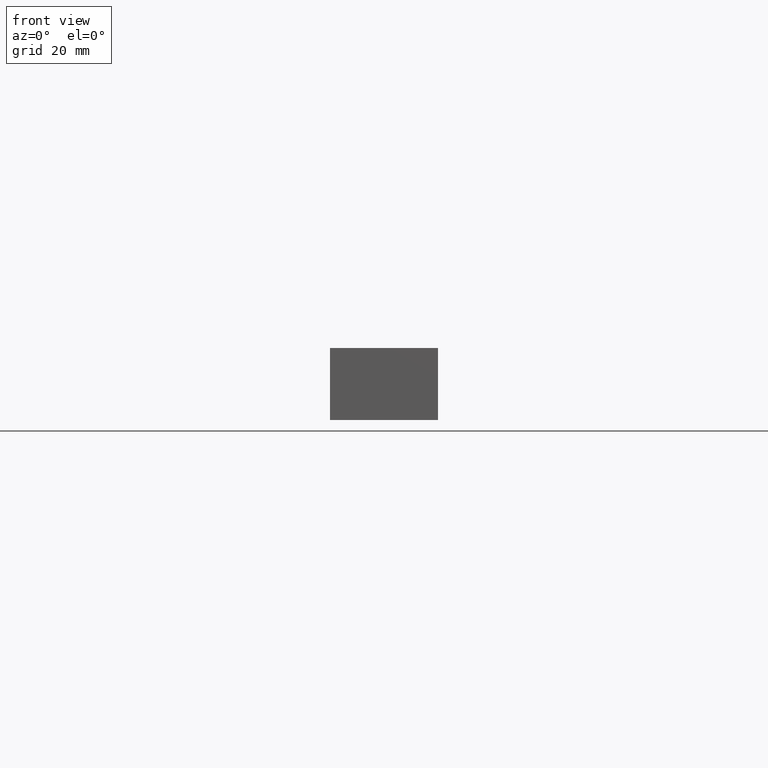
[diagram: clean part render]
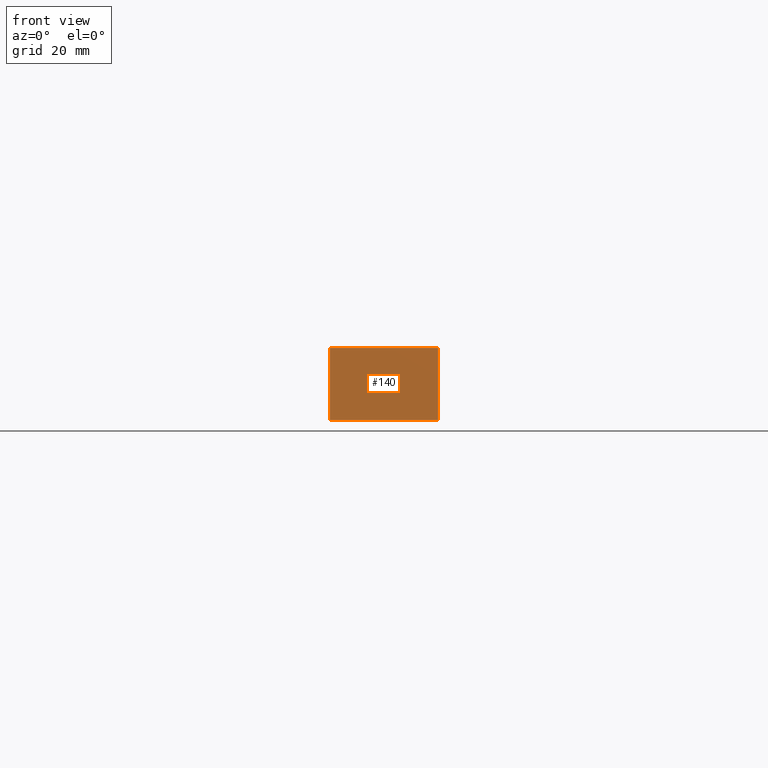
[diagram: same view with one face highlighted and labeled with its STEP entity id]
A machine part, front view. The second image highlights one B-rep face of the part: STEP entity #140.
In plain terms, the highlighted planar face has unit normal (0, -1, 0).
Its self-contained STEP definition (entity closure, byte-faithful):
#2 = VECTOR ( 'NONE', #78, 1000.000000000000000 ) ;
#3 = ORIENTED_EDGE ( 'NONE', *, *, #127, .F. ) ;
#20 = DIRECTION ( 'NONE',  ( 0.0000000000000000000, 0.0000000000000000000, 1.000000000000000000 ) ) ;
#23 = LINE ( 'NONE', #37, #108 ) ;
#31 = CARTESIAN_POINT ( 'NONE',  ( 0.0000000000000000000, 0.0000000000000000000, 10.00000000000000000 ) ) ;
#32 = ORIENTED_EDGE ( 'NONE', *, *, #158, .F. ) ;
#37 = CARTESIAN_POINT ( 'NONE',  ( 0.0000000000000000000, 0.0000000000000000000, 10.00000000000000000 ) ) ;
#43 = CARTESIAN_POINT ( 'NONE',  ( 0.0000000000000000000, 0.0000000000000000000, -10.00000000000000000 ) ) ;
#45 = ORIENTED_EDGE ( 'NONE', *, *, #124, .T. ) ;
#50 = VERTEX_POINT ( 'NONE', #99 ) ;
#58 = LINE ( 'NONE', #87, #2 ) ;
#72 = PLANE ( 'NONE',  #135 ) ;
#78 = DIRECTION ( 'NONE',  ( 1.000000000000000000, 0.0000000000000000000, 0.0000000000000000000 ) ) ;
#86 = FACE_OUTER_BOUND ( 'NONE', #212, .T. ) ;
#87 = CARTESIAN_POINT ( 'NONE',  ( 0.0000000000000000000, 0.0000000000000000000, -10.00000000000000000 ) ) ;
#92 = VECTOR ( 'NONE', #20, 1000.000000000000000 ) ;
#95 = CARTESIAN_POINT ( 'NONE',  ( 30.00000000000000000, 0.0000000000000000000, -10.00000000000000000 ) ) ;
#99 = CARTESIAN_POINT ( 'NONE',  ( 0.0000000000000000000, 0.0000000000000000000, -10.00000000000000000 ) ) ;
#103 = DIRECTION ( 'NONE',  ( 1.000000000000000000, 0.0000000000000000000, 0.0000000000000000000 ) ) ;
#108 = VECTOR ( 'NONE', #103, 1000.000000000000000 ) ;
#111 = ORIENTED_EDGE ( 'NONE', *, *, #229, .T. ) ;
#116 = DIRECTION ( 'NONE',  ( 0.0000000000000000000, -1.000000000000000000, 0.0000000000000000000 ) ) ;
#124 = EDGE_CURVE ( 'NONE', #50, #144, #58, .T. ) ;
#127 = EDGE_CURVE ( 'NONE', #50, #138, #153, .T. ) ;
#134 = CARTESIAN_POINT ( 'NONE',  ( 0.0000000000000000000, 0.0000000000000000000, -10.00000000000000000 ) ) ;
#135 = AXIS2_PLACEMENT_3D ( 'NONE', #134, #116, #236 ) ;
#138 = VERTEX_POINT ( 'NONE', #31 ) ;
#140 = ADVANCED_FACE ( 'NONE', ( #86 ), #72, .T. ) ;
#144 = VERTEX_POINT ( 'NONE', #232 ) ;
#153 = LINE ( 'NONE', #43, #92 ) ;
#158 = EDGE_CURVE ( 'NONE', #138, #189, #23, .T. ) ;
#161 = DIRECTION ( 'NONE',  ( 0.0000000000000000000, 0.0000000000000000000, 1.000000000000000000 ) ) ;
#180 = CARTESIAN_POINT ( 'NONE',  ( 30.00000000000000000, 0.0000000000000000000, 10.00000000000000000 ) ) ;
#189 = VERTEX_POINT ( 'NONE', #180 ) ;
#207 = VECTOR ( 'NONE', #161, 1000.000000000000000 ) ;
#212 = EDGE_LOOP ( 'NONE', ( #32, #3, #45, #111 ) ) ;
#221 = LINE ( 'NONE', #95, #207 ) ;
#229 = EDGE_CURVE ( 'NONE', #144, #189, #221, .T. ) ;
#232 = CARTESIAN_POINT ( 'NONE',  ( 30.00000000000000000, 0.0000000000000000000, -10.00000000000000000 ) ) ;
#236 = DIRECTION ( 'NONE',  ( 0.0000000000000000000, 0.0000000000000000000, -1.000000000000000000 ) ) ;